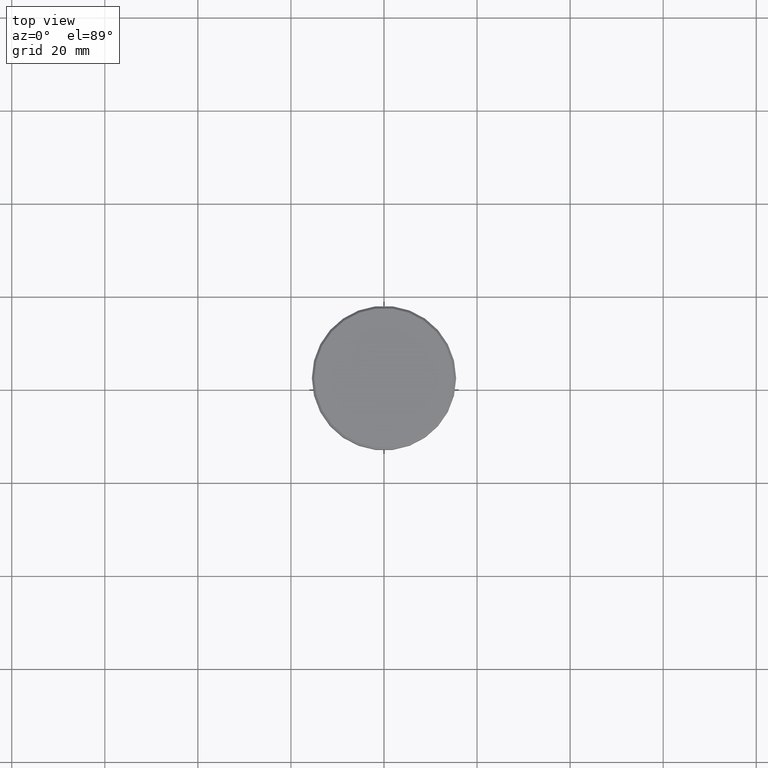
[diagram: clean part render]
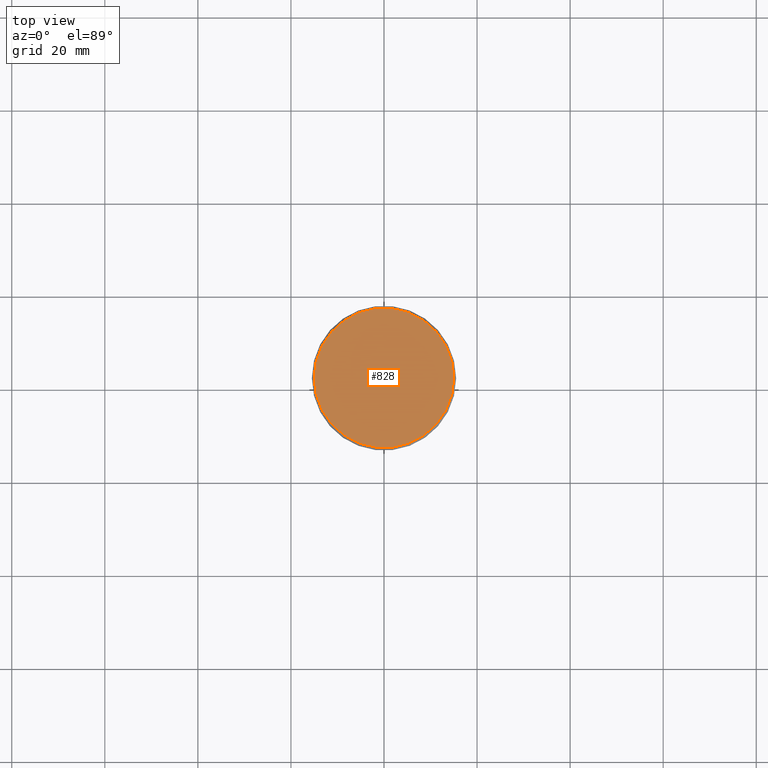
[diagram: same view with one face highlighted and labeled with its STEP entity id]
A machine part, top view. The second image highlights one B-rep face of the part: STEP entity #828.
In plain terms, the highlighted planar face has unit normal (0, -0, 1).
Its self-contained STEP definition (entity closure, byte-faithful):
#73 = CARTESIAN_POINT ( 'NONE',  ( 0.000000000000000000, 0.000000000000000000, 0.000000000000000000 ) ) ;
#76 = DIRECTION ( 'NONE',  ( -0.000000000000000000, -0.000000000000000000, 1.000000000000000000 ) ) ;
#191 = DIRECTION ( 'NONE',  ( -0.000000000000000000, -0.000000000000000000, 1.000000000000000000 ) ) ;
#195 = EDGE_LOOP ( 'NONE', ( #835, #947 ) ) ;
#316 = DIRECTION ( 'NONE',  ( 1.000000000000000000, 0.000000000000000000, 0.000000000000000000 ) ) ;
#322 = CARTESIAN_POINT ( 'NONE',  ( 0.000000000000000000, 0.000000000000000000, 0.000000000000000000 ) ) ;
#406 = EDGE_CURVE ( 'NONE', #1087, #1008, #832, .T. ) ;
#450 = AXIS2_PLACEMENT_3D ( 'NONE', #897, #76, #795 ) ;
#469 = AXIS2_PLACEMENT_3D ( 'NONE', #73, #191, #534 ) ;
#483 = CARTESIAN_POINT ( 'NONE',  ( 15.00000000000001421, 1.867586368699714559E-15, 0.000000000000000000 ) ) ;
#506 = PLANE ( 'NONE',  #853 ) ;
#534 = DIRECTION ( 'NONE',  ( 1.000000000000000000, 0.000000000000000000, 0.000000000000000000 ) ) ;
#753 = CARTESIAN_POINT ( 'NONE',  ( -15.00000000000001421, 0.000000000000000000, 0.000000000000000000 ) ) ;
#767 = FACE_OUTER_BOUND ( 'NONE', #195, .T. ) ;
#795 = DIRECTION ( 'NONE',  ( 1.000000000000000000, 0.000000000000000000, 0.000000000000000000 ) ) ;
#828 = ADVANCED_FACE ( 'NONE', ( #767 ), #506, .T. ) ;
#832 = CIRCLE ( 'NONE', #469, 15.00000000000001421 ) ;
#835 = ORIENTED_EDGE ( 'NONE', *, *, #976, .T. ) ;
#853 = AXIS2_PLACEMENT_3D ( 'NONE', #322, #1143, #316 ) ;
#897 = CARTESIAN_POINT ( 'NONE',  ( 0.000000000000000000, 0.000000000000000000, 0.000000000000000000 ) ) ;
#947 = ORIENTED_EDGE ( 'NONE', *, *, #406, .T. ) ;
#976 = EDGE_CURVE ( 'NONE', #1008, #1087, #1154, .T. ) ;
#1008 = VERTEX_POINT ( 'NONE', #753 ) ;
#1087 = VERTEX_POINT ( 'NONE', #483 ) ;
#1143 = DIRECTION ( 'NONE',  ( 0.000000000000000000, -0.000000000000000000, 1.000000000000000000 ) ) ;
#1154 = CIRCLE ( 'NONE', #450, 15.00000000000001421 ) ;